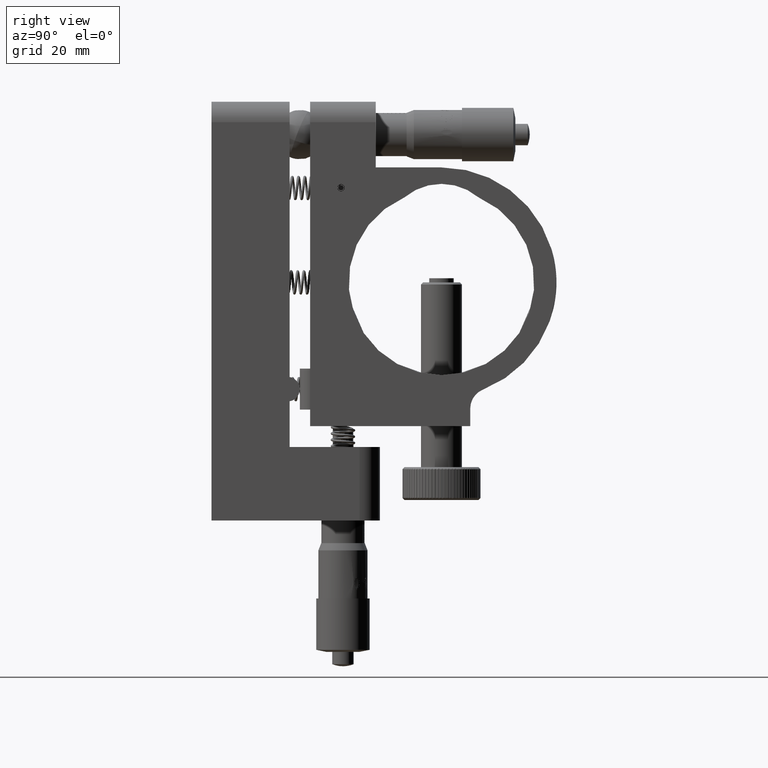
[diagram: clean part render]
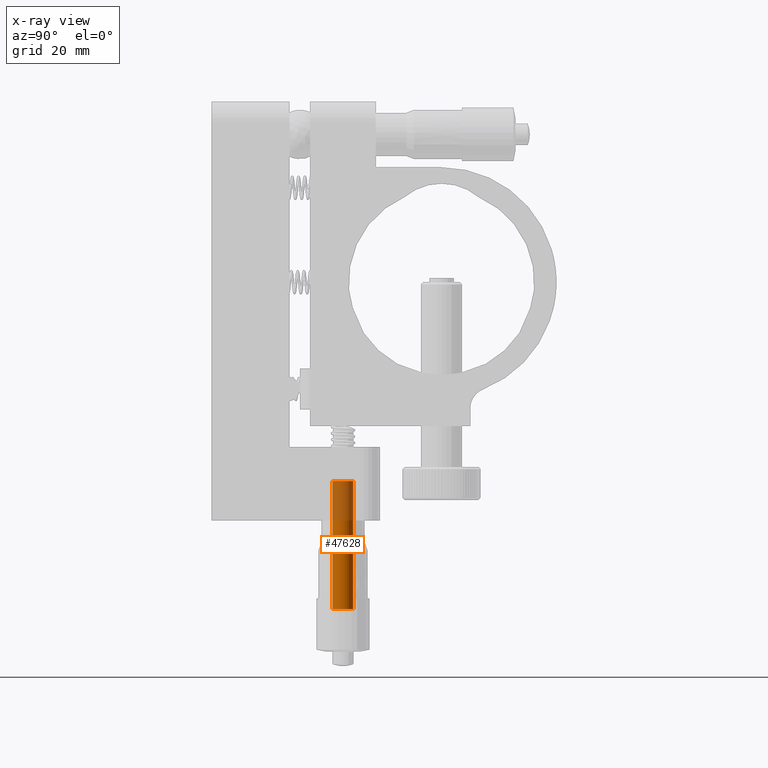
[diagram: x-ray — body ghosted, one internal face saturated and labeled with its STEP entity id]
A machine part, right view, then the same camera in x-ray: the body is ghosted and one INTERNAL B-rep face — a face not visible from any outside direction — is saturated and labeled: STEP entity #47628.
In plain terms, the highlighted cylindrical surface (edge-blend (fillet) strip) has radius 2.5 mm, axis along (-0, 0, 1).
Its self-contained STEP definition (entity closure, byte-faithful):
#113 = EDGE_CURVE ( 'NONE', #81645, #47758, #56391, .T. ) ;
#7917 = DIRECTION ( 'NONE',  ( -4.331523268857617600E-026, 1.692413147233275700E-016, 1.000000000000000000 ) ) ;
#9698 = ORIENTED_EDGE ( 'NONE', *, *, #81554, .T. ) ;
#10380 = DIRECTION ( 'NONE',  ( -4.331523268857617600E-026, 1.692413147233275700E-016, 1.000000000000000000 ) ) ;
#10564 = AXIS2_PLACEMENT_3D ( 'NONE', #23846, #10380, #59157 ) ;
#11599 = EDGE_CURVE ( 'NONE', #81645, #76203, #19293, .T. ) ;
#13412 = VERTEX_POINT ( 'NONE', #64356 ) ;
#15015 = CIRCLE ( 'NONE', #44708, 2.500000000000012400 ) ;
#19293 = CIRCLE ( 'NONE', #10564, 2.500000000000012400 ) ;
#19396 = VECTOR ( 'NONE', #27539, 1000.000000000000000 ) ;
#22852 = CARTESIAN_POINT ( 'NONE',  ( -28.94411998232208600, 29.50062459329849000, -79.60000000000002300 ) ) ;
#23656 = EDGE_CURVE ( 'NONE', #76203, #13412, #69572, .T. ) ;
#23846 = CARTESIAN_POINT ( 'NONE',  ( -29.00000000000000000, 32.00000000000000700, -79.60000000000002300 ) ) ;
#27482 = CARTESIAN_POINT ( 'NONE',  ( -29.05588001767791800, 34.49937540670152500, -79.60000000000002300 ) ) ;
#27539 = DIRECTION ( 'NONE',  ( -4.331523268857617600E-026, 1.692413147233275700E-016, 1.000000000000000000 ) ) ;
#32283 = EDGE_LOOP ( 'NONE', ( #78077, #33884, #9698, #74103 ) ) ;
#33884 = ORIENTED_EDGE ( 'NONE', *, *, #113, .T. ) ;
#37471 = CYLINDRICAL_SURFACE ( 'NONE', #70612, 2.500000000000012400 ) ;
#40092 = CARTESIAN_POINT ( 'NONE',  ( -29.00000000000000000, 32.00000000000000700, -79.60000000000002300 ) ) ;
#40943 = CARTESIAN_POINT ( 'NONE',  ( -29.05588001767791800, 34.49937540670152500, -79.60000000000002300 ) ) ;
#44708 = AXIS2_PLACEMENT_3D ( 'NONE', #77983, #7917, #50273 ) ;
#47280 = FACE_OUTER_BOUND ( 'NONE', #32283, .T. ) ;
#47384 = DIRECTION ( 'NONE',  ( -4.331523268857617600E-026, 1.692413147233275700E-016, 1.000000000000000000 ) ) ;
#47628 = ADVANCED_FACE ( 'NONE', ( #47280 ), #37471, .F. ) ;
#47758 = VERTEX_POINT ( 'NONE', #49091 ) ;
#49091 = CARTESIAN_POINT ( 'NONE',  ( -28.94411998232208600, 29.50062459329846100, -48.40000000000002000 ) ) ;
#50273 = DIRECTION ( 'NONE',  ( -0.02235200707116624700, 0.9997501626806022400, 0.0000000000000000000 ) ) ;
#54201 = VECTOR ( 'NONE', #87363, 1000.000000000000000 ) ;
#56391 = LINE ( 'NONE', #22852, #54201 ) ;
#59157 = DIRECTION ( 'NONE',  ( -0.02235200707116624700, 0.9997501626806022400, 0.0000000000000000000 ) ) ;
#61699 = DIRECTION ( 'NONE',  ( -0.02235200707116624700, 0.9997501626806022400, 0.0000000000000000000 ) ) ;
#64356 = CARTESIAN_POINT ( 'NONE',  ( -29.05588001767793200, 34.49937540670148200, -48.40000000000002000 ) ) ;
#66891 = CARTESIAN_POINT ( 'NONE',  ( -28.94411998232208600, 29.50062459329850400, -79.60000000000002300 ) ) ;
#69572 = LINE ( 'NONE', #40943, #19396 ) ;
#70612 = AXIS2_PLACEMENT_3D ( 'NONE', #40092, #47384, #61699 ) ;
#74103 = ORIENTED_EDGE ( 'NONE', *, *, #23656, .F. ) ;
#76203 = VERTEX_POINT ( 'NONE', #27482 ) ;
#77983 = CARTESIAN_POINT ( 'NONE',  ( -29.00000000000001400, 31.99999999999996400, -48.40000000000002000 ) ) ;
#78077 = ORIENTED_EDGE ( 'NONE', *, *, #11599, .F. ) ;
#81554 = EDGE_CURVE ( 'NONE', #47758, #13412, #15015, .T. ) ;
#81645 = VERTEX_POINT ( 'NONE', #66891 ) ;
#87363 = DIRECTION ( 'NONE',  ( -4.331523268857617600E-026, 1.692413147233275700E-016, 1.000000000000000000 ) ) ;